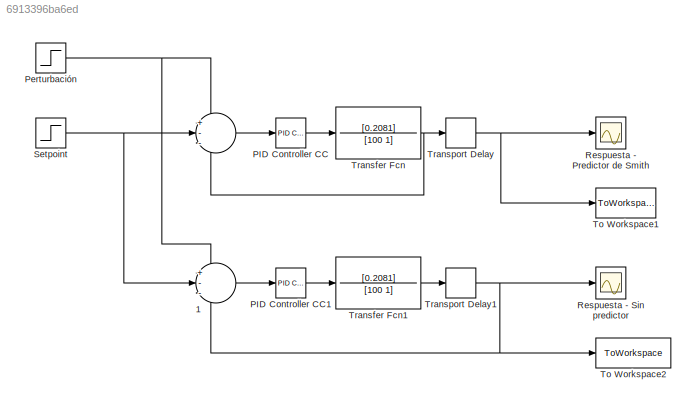
MODEL slx_6913396ba6ed
KIND model
BLOCK [Sum]  
  IconShape = round
  InputSameDT = off
  Inputs = +--
  OutDataTypeStr = Inherit: Inherit via internal rule
  Ports = [3, 1]
  SaturateOnIntegerOverflow = off
BLOCK [Sum]  1
  IconShape = round
  InputSameDT = off
  Inputs = +--
  OutDataTypeStr = Inherit: Inherit via internal rule
  Ports = [3, 1]
  SaturateOnIntegerOverflow = off
BLOCK [Reference] PID Controller CC  REF=simulink_need_slupdate/PID Controller
  D = 0
  I = Kc_Smith/Tau_Smith
  P = Kc_Smith
  Ports = [1, 1]
  SourceBlock = simulink_need_slupdate/PID Controller
  SourceType = PID Controller
BLOCK [Reference] PID Controller CC1  REF=simulink_need_slupdate/PID Controller
  D = 0
  I = Kc_Normal/Tau_Normal
  P = Kc_Normal
  Ports = [1, 1]
  SourceBlock = simulink_need_slupdate/PID Controller
  SourceType = PID Controller
BLOCK [Step] Perturbación
  After = Fh0*1.02
  Before = Fh0
  SampleTime = 1
  Time = 100
BLOCK [Scope] Respuesta - Predictor de Smith 
  Floating = off
  NumInputPorts = 1
  Ports = [1]
  ShowLegends = off
BLOCK [Scope] Respuesta - Sin predictor
  Floating = off
  NumInputPorts = 1
  Ports = [1]
  SaveName = ScopeData1
  ShowLegends = off
BLOCK [Step] Setpoint
  After = Fh0
  Before = Fh0
  SampleTime = 1
  Time = 0
BLOCK [ToWorkspace] To Workspace1
  MaxDataPoints = inf
  Ports = [1]
  SaveFormat = Structure With Time
  VariableName = CE_SMITH
BLOCK [ToWorkspace] To Workspace2
  MaxDataPoints = inf
  Ports = [1]
  SaveFormat = Structure With Time
  VariableName = CE_DEFAULT
BLOCK [TransferFcn] Transfer Fcn
  Denominator = [100 1]
  Numerator = [0.2081]
BLOCK [TransferFcn] Transfer Fcn1
  Denominator = [100 1]
  Numerator = [0.2081]
BLOCK [TransportDelay] Transport Delay
  DelayTime = 21.8
  Ports = [1, 1]
BLOCK [TransportDelay] Transport Delay1
  DelayTime = 21.8
  Ports = [1, 1]
LINE  1:1 -> PID Controller CC1:1
LINE  :1 -> PID Controller CC:1
LINE PID Controller CC1:1 -> Transfer Fcn1:1
LINE PID Controller CC:1 -> Transfer Fcn:1
NET Perturbación:1 ->  1:1,  :1
NET Setpoint:1 ->  1:2,  :2
LINE Transfer Fcn1:1 -> Transport Delay1:1
NET Transfer Fcn:1 ->  :3, Transport Delay:1
NET Transport Delay1:1 ->  1:3, Respuesta - Sin predictor:1, To Workspace2:1
NET Transport Delay:1 -> Respuesta - Predictor de Smith :1, To Workspace1:1
note: NET lines group one-source signal fan-out (src -> all destinations, sorted); 1:1 wires keep LINE
